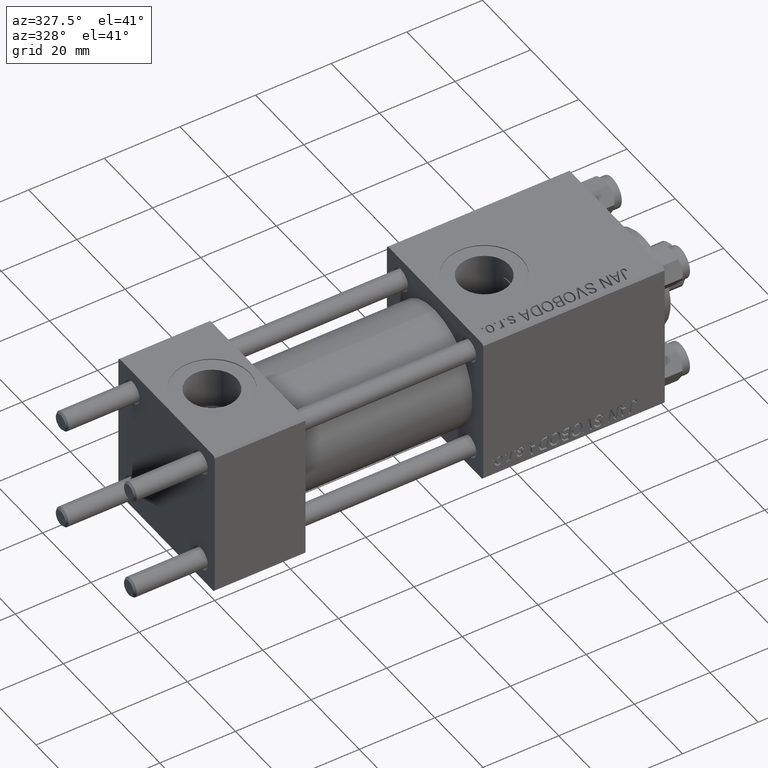
[diagram: clean part render]
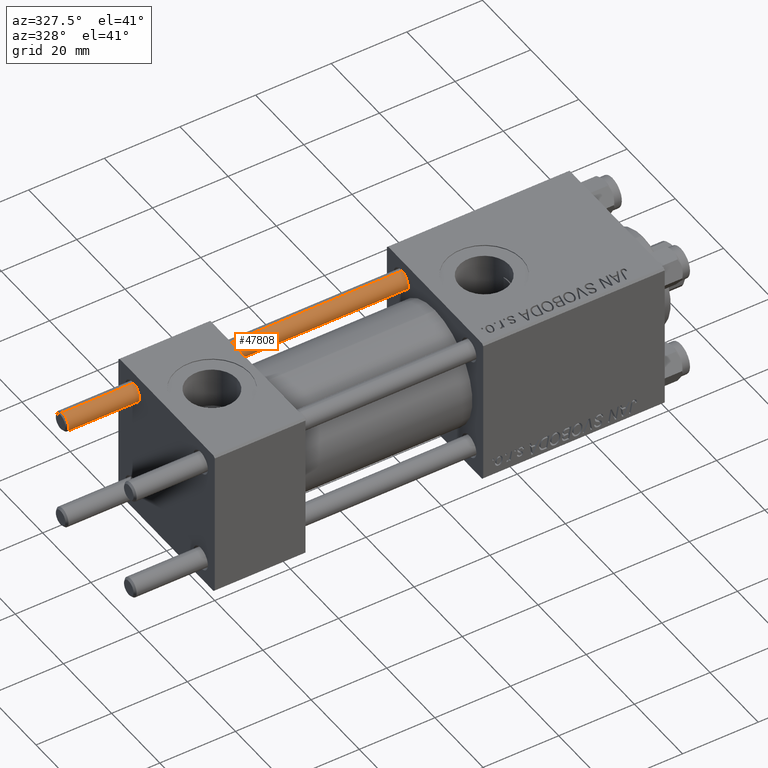
[diagram: same view with one face highlighted and labeled with its STEP entity id]
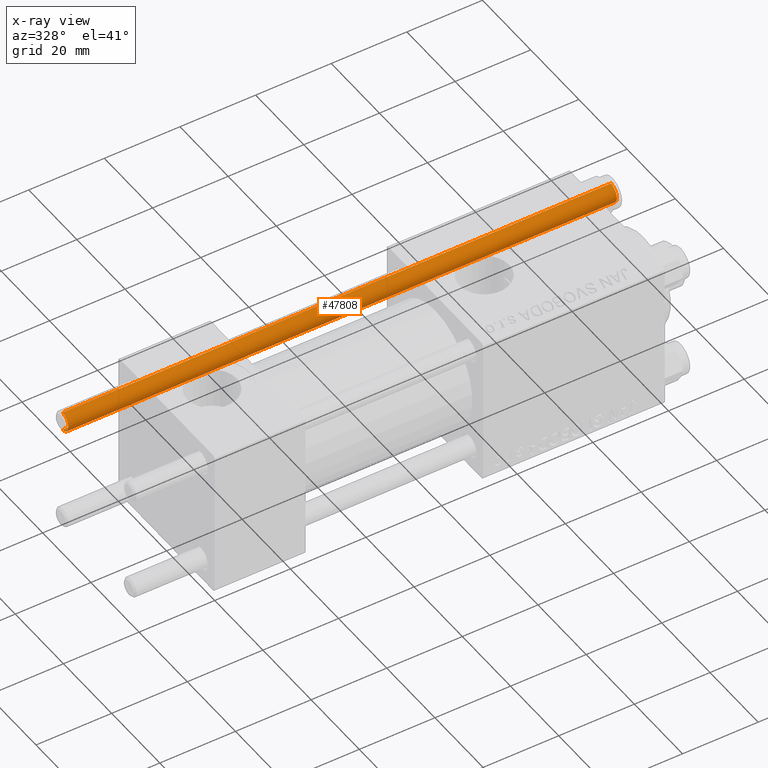
[diagram: x-ray of the same camera — body ghosted, the highlighted face saturated]
A machine part, auxiliary view. The second image highlights one B-rep face of the part: STEP entity #47808.
The next image is the same camera in x-ray: the body ghosted, the highlighted face saturated — about 0% of this face is hidden behind the body in this view.
In plain terms, the highlighted cylindrical surface (edge-blend (fillet) strip) has radius 2.5 mm, axis along (-1, -0, -0).
Its self-contained STEP definition (entity closure, byte-faithful):
#1077 = AXIS2_PLACEMENT_3D ( 'NONE', #9880, #17469, #20991 ) ;
#2783 = VECTOR ( 'NONE', #3177, 1000.000000000000000 ) ;
#3177 = DIRECTION ( 'NONE',  ( -0.000000000000000000, -0.000000000000000000, -1.000000000000000000 ) ) ;
#4405 = AXIS2_PLACEMENT_3D ( 'NONE', #10034, #40099, #33266 ) ;
#6648 = CARTESIAN_POINT ( 'NONE',  ( 0.000000000000000000, 0.000000000000000000, 145.5000000000000284 ) ) ;
#7164 = VERTEX_POINT ( 'NONE', #49246 ) ;
#9880 = CARTESIAN_POINT ( 'NONE',  ( 0.000000000000000000, 0.000000000000000000, 146.0000000000000000 ) ) ;
#10034 = CARTESIAN_POINT ( 'NONE',  ( 0.000000000000000000, 0.000000000000000000, 0.5000000000000559552 ) ) ;
#11082 = EDGE_CURVE ( 'NONE', #18320, #7164, #48066, .T. ) ;
#13477 = ORIENTED_EDGE ( 'NONE', *, *, #22474, .T. ) ;
#13674 = EDGE_LOOP ( 'NONE', ( #43443, #13477, #49230, #15074 ) ) ;
#14831 = CIRCLE ( 'NONE', #43859, 2.500000000000000000 ) ;
#15074 = ORIENTED_EDGE ( 'NONE', *, *, #25517, .T. ) ;
#16502 = DIRECTION ( 'NONE',  ( -0.000000000000000000, -0.000000000000000000, -1.000000000000000000 ) ) ;
#17469 = DIRECTION ( 'NONE',  ( -0.000000000000000000, -0.000000000000000000, -1.000000000000000000 ) ) ;
#18320 = VERTEX_POINT ( 'NONE', #22076 ) ;
#18509 = DIRECTION ( 'NONE',  ( 1.000000000000000000, 0.000000000000000000, 0.000000000000000000 ) ) ;
#18651 = VERTEX_POINT ( 'NONE', #46244 ) ;
#20991 = DIRECTION ( 'NONE',  ( -1.000000000000000000, 0.000000000000000000, 0.000000000000000000 ) ) ;
#21025 = CARTESIAN_POINT ( 'NONE',  ( 2.500000000000000000, 3.061616997868383141E-16, 146.0000000000000000 ) ) ;
#22076 = CARTESIAN_POINT ( 'NONE',  ( 2.500000000000000000, 3.061616997868383141E-16, 145.5000000000000284 ) ) ;
#22474 = EDGE_CURVE ( 'NONE', #18320, #18651, #14831, .T. ) ;
#25299 = CYLINDRICAL_SURFACE ( 'NONE', #1077, 2.500000000000000000 ) ;
#25486 = VERTEX_POINT ( 'NONE', #44886 ) ;
#25517 = EDGE_CURVE ( 'NONE', #25486, #7164, #41521, .T. ) ;
#26178 = CARTESIAN_POINT ( 'NONE',  ( -2.500000000000000000, 0.000000000000000000, 146.0000000000000000 ) ) ;
#29032 = EDGE_CURVE ( 'NONE', #18651, #25486, #37797, .T. ) ;
#29870 = VECTOR ( 'NONE', #16502, 1000.000000000000000 ) ;
#33266 = DIRECTION ( 'NONE',  ( 1.000000000000000000, 0.000000000000000000, 0.000000000000000000 ) ) ;
#33450 = DIRECTION ( 'NONE',  ( 0.000000000000000000, 0.000000000000000000, -1.000000000000000000 ) ) ;
#36689 = FACE_OUTER_BOUND ( 'NONE', #13674, .T. ) ;
#37797 = LINE ( 'NONE', #26178, #2783 ) ;
#40099 = DIRECTION ( 'NONE',  ( -0.000000000000000000, -0.000000000000000000, 1.000000000000000000 ) ) ;
#41521 = CIRCLE ( 'NONE', #4405, 2.500000000000000000 ) ;
#43443 = ORIENTED_EDGE ( 'NONE', *, *, #11082, .F. ) ;
#43859 = AXIS2_PLACEMENT_3D ( 'NONE', #6648, #33450, #18509 ) ;
#44886 = CARTESIAN_POINT ( 'NONE',  ( -2.500000000000000000, 0.000000000000000000, 0.5000000000000559552 ) ) ;
#46244 = CARTESIAN_POINT ( 'NONE',  ( -2.500000000000000000, 0.000000000000000000, 145.5000000000000284 ) ) ;
#47808 = ADVANCED_FACE ( 'NONE', ( #36689 ), #25299, .T. ) ;
#48066 = LINE ( 'NONE', #21025, #29870 ) ;
#49230 = ORIENTED_EDGE ( 'NONE', *, *, #29032, .T. ) ;
#49246 = CARTESIAN_POINT ( 'NONE',  ( 2.500000000000000000, 3.061616997868383141E-16, 0.5000000000000559552 ) ) ;